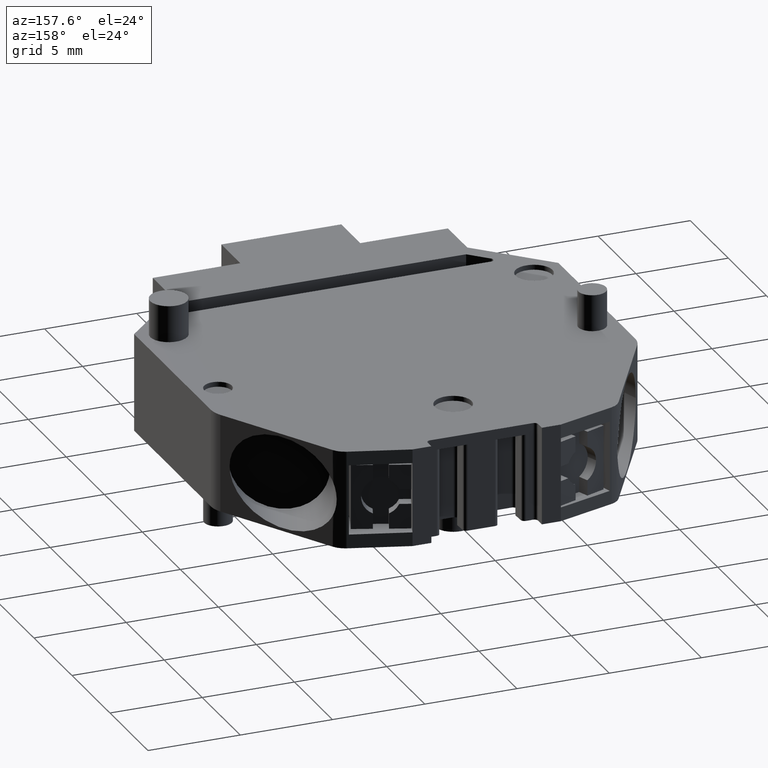
[diagram: clean part render]
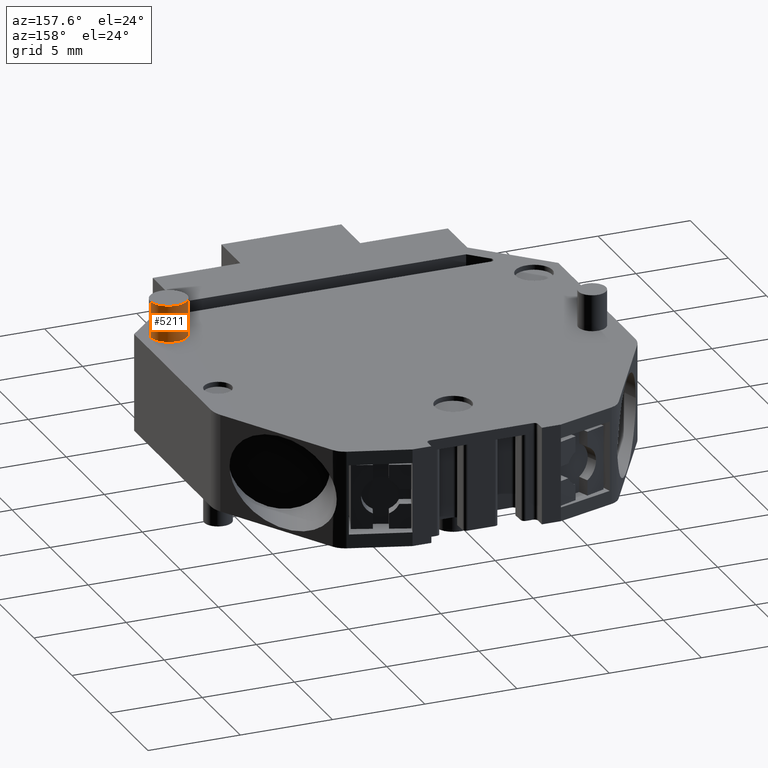
[diagram: same view with one face highlighted and labeled with its STEP entity id]
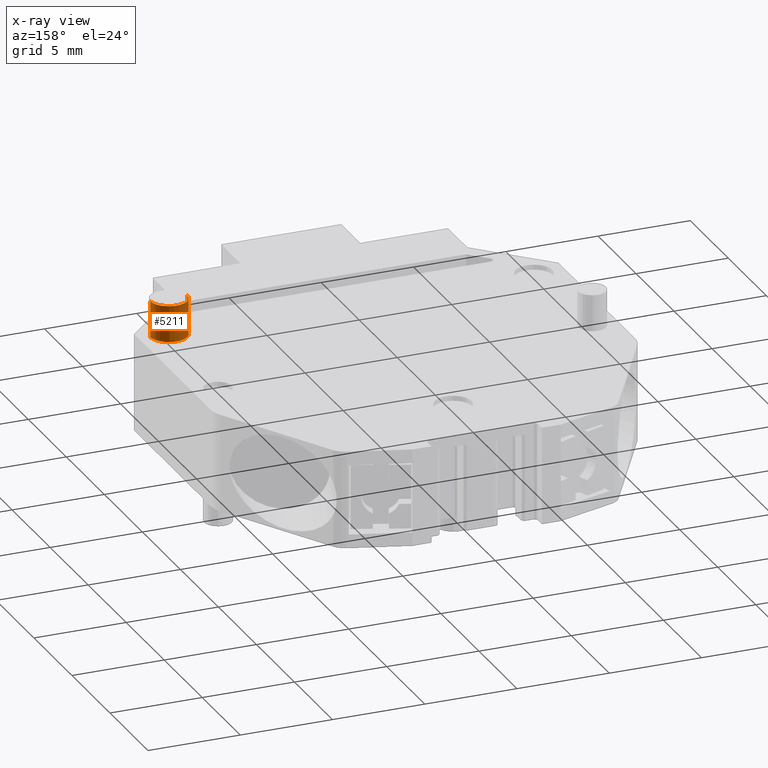
[diagram: x-ray of the same camera — body ghosted, the highlighted face saturated]
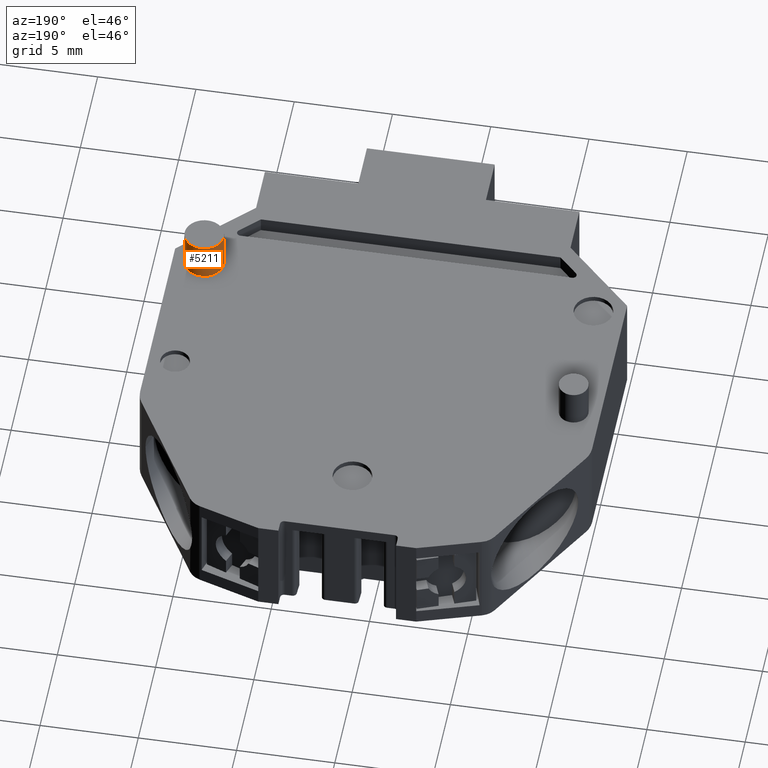
[diagram: same view with one face highlighted and labeled with its STEP entity id]
A machine part, auxiliary view. The second image highlights one B-rep face of the part: STEP entity #5211.
The next image is the same camera in x-ray: the body ghosted, the highlighted face saturated — about 0% of this face is hidden behind the body in this view.
A second angle (auxiliary view) of the same face is appended — the face is thin or edge-on in the first view.
In plain terms, the highlighted cylindrical surface (edge-blend (fillet) strip) has radius 1 mm, axis along (0, 0, -1).
Its self-contained STEP definition (entity closure, byte-faithful):
#219 = CIRCLE ( 'NONE', #1784, 0.9999999999872333200 ) ;
#516 = FACE_OUTER_BOUND ( 'NONE', #2616, .T. ) ;
#517 = CYLINDRICAL_SURFACE ( 'NONE', #1855, 0.9999999999872333200 ) ;
#529 = DIRECTION ( 'NONE',  ( -1.000000000000000000, 0.0000000000000000000, 0.0000000000000000000 ) ) ;
#554 = DIRECTION ( 'NONE',  ( 0.0000000000000000000, 0.0000000000000000000, -1.000000000000000000 ) ) ;
#564 = CARTESIAN_POINT ( 'NONE',  ( 301.1859378434595600, 439.2072313446179800, -23.35999999999999900 ) ) ;
#856 = ORIENTED_EDGE ( 'NONE', *, *, #5364, .T. ) ;
#882 = ORIENTED_EDGE ( 'NONE', *, *, #4903, .F. ) ;
#885 = ORIENTED_EDGE ( 'NONE', *, *, #5370, .F. ) ;
#886 = ORIENTED_EDGE ( 'NONE', *, *, #5361, .T. ) ;
#1784 = AXIS2_PLACEMENT_3D ( 'NONE', #2379, #2362, #2347 ) ;
#1855 = AXIS2_PLACEMENT_3D ( 'NONE', #564, #554, #529 ) ;
#2228 = CARTESIAN_POINT ( 'NONE',  ( 300.1859378434722900, 439.2072313446179800, -25.33000000000000200 ) ) ;
#2240 = CARTESIAN_POINT ( 'NONE',  ( 302.1859378434467700, 439.2072313446179800, -25.33000000000000200 ) ) ;
#2302 = CARTESIAN_POINT ( 'NONE',  ( 302.1859378434467700, 439.2072313446179800, -23.35999999999999900 ) ) ;
#2303 = CARTESIAN_POINT ( 'NONE',  ( 300.1859378434722900, 439.2072313446179800, -23.35999999999999900 ) ) ;
#2347 = DIRECTION ( 'NONE',  ( -1.000000000000000000, 0.0000000000000000000, 0.0000000000000000000 ) ) ;
#2362 = DIRECTION ( 'NONE',  ( 0.0000000000000000000, 0.0000000000000000000, -1.000000000000000000 ) ) ;
#2379 = CARTESIAN_POINT ( 'NONE',  ( 301.1859378434595600, 439.2072313446179800, -25.33000000000000200 ) ) ;
#2616 = EDGE_LOOP ( 'NONE', ( #886, #856, #882, #885 ) ) ;
#2959 = LINE ( 'NONE', #2979, #5186 ) ;
#2962 = DIRECTION ( 'NONE',  ( 0.0000000000000000000, 0.0000000000000000000, -1.000000000000000000 ) ) ;
#2973 = DIRECTION ( 'NONE',  ( 0.0000000000000000000, 0.0000000000000000000, -1.000000000000000000 ) ) ;
#2977 = CARTESIAN_POINT ( 'NONE',  ( 302.1859378434467700, 439.2072313446179800, -23.35999999999999900 ) ) ;
#2979 = CARTESIAN_POINT ( 'NONE',  ( 300.1859378434722900, 439.2072313446179800, -23.35999999999999900 ) ) ;
#3194 = DIRECTION ( 'NONE',  ( 0.0000000000000000000, 0.0000000000000000000, -1.000000000000000000 ) ) ;
#3196 = LINE ( 'NONE', #2977, #5147 ) ;
#3198 = DIRECTION ( 'NONE',  ( -1.000000000000000000, 0.0000000000000000000, 0.0000000000000000000 ) ) ;
#3214 = CARTESIAN_POINT ( 'NONE',  ( 301.1859378434595600, 439.2072313446179800, -23.35999999999999900 ) ) ;
#4441 = VERTEX_POINT ( 'NONE', #2240 ) ;
#4477 = VERTEX_POINT ( 'NONE', #2228 ) ;
#4542 = VERTEX_POINT ( 'NONE', #2302 ) ;
#4545 = VERTEX_POINT ( 'NONE', #2303 ) ;
#4903 = EDGE_CURVE ( 'NONE', #4477, #4441, #219, .T. ) ;
#5147 = VECTOR ( 'NONE', #2962, 1000.000000000000000 ) ;
#5151 = AXIS2_PLACEMENT_3D ( 'NONE', #3214, #3194, #3198 ) ;
#5160 = CIRCLE ( 'NONE', #5151, 0.9999999999872333200 ) ;
#5186 = VECTOR ( 'NONE', #2973, 1000.000000000000000 ) ;
#5211 = ADVANCED_FACE ( 'NONE', ( #516 ), #517, .T. ) ;
#5361 = EDGE_CURVE ( 'NONE', #4545, #4542, #5160, .T. ) ;
#5364 = EDGE_CURVE ( 'NONE', #4542, #4441, #3196, .T. ) ;
#5370 = EDGE_CURVE ( 'NONE', #4545, #4477, #2959, .T. ) ;